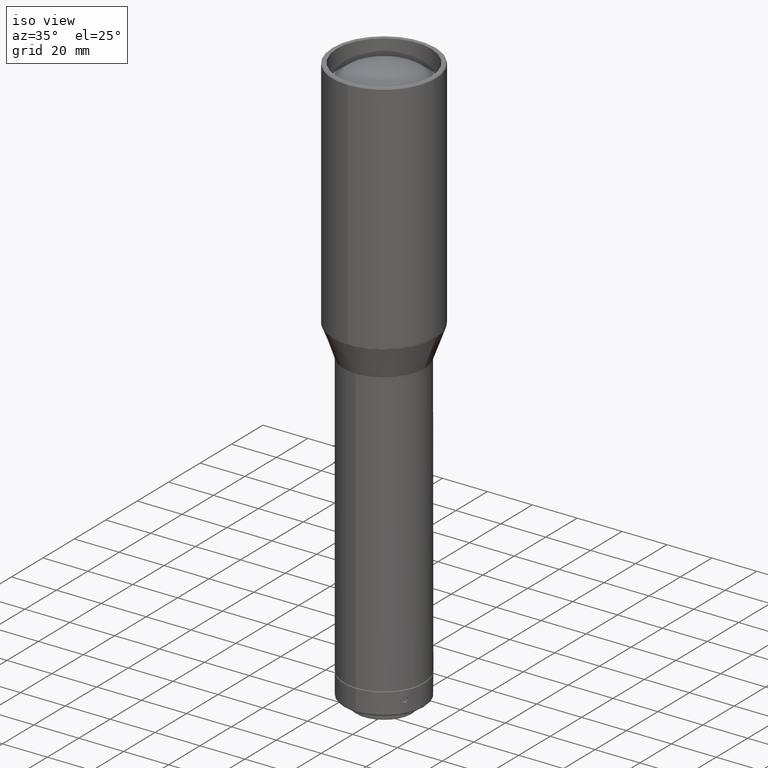
[diagram: clean part render]
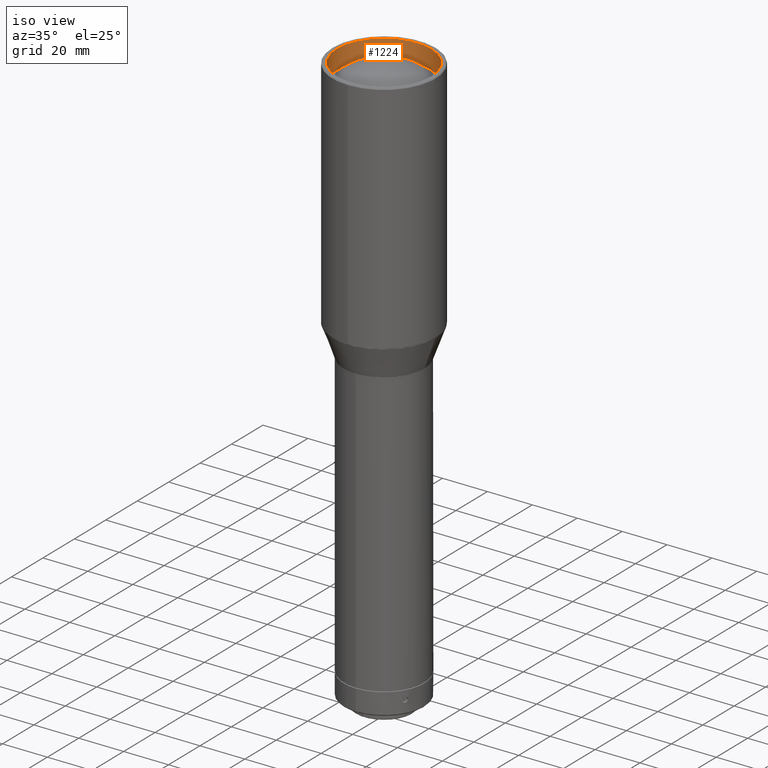
[diagram: same view with one face highlighted and labeled with its STEP entity id]
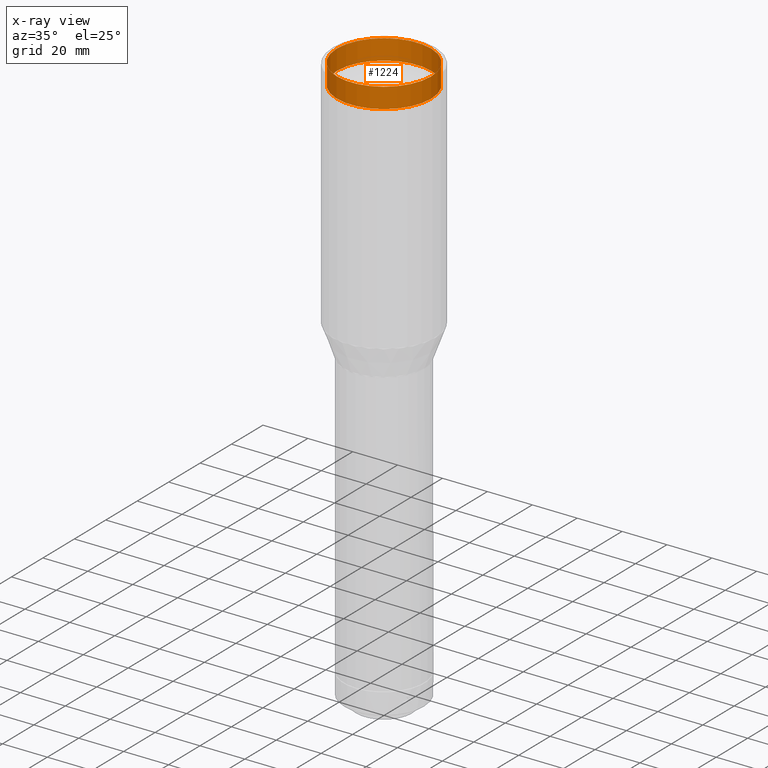
[diagram: x-ray of the same camera — body ghosted, the highlighted face saturated]
A machine part, iso view. The second image highlights one B-rep face of the part: STEP entity #1224.
The next image is the same camera in x-ray: the body ghosted, the highlighted face saturated — about 0% of this face is hidden behind the body in this view.
In plain terms, the highlighted cylindrical surface (bore or boss wall) has radius 21 mm, axis along (-0, -0, 1).
Its self-contained STEP definition (entity closure, byte-faithful):
#131 = CARTESIAN_POINT ( 'NONE',  ( 0.000000000000000000, 0.000000000000000000, -394.0000000000000000 ) ) ;
#199 = CIRCLE ( 'NONE', #369, 21.00000000000000000 ) ;
#205 = ORIENTED_EDGE ( 'NONE', *, *, #1074, .F. ) ;
#256 = CARTESIAN_POINT ( 'NONE',  ( 21.00000000000000000, 0.000000000000000000, -403.0000000000000000 ) ) ;
#257 = DIRECTION ( 'NONE',  ( 0.000000000000000000, 0.000000000000000000, 1.000000000000000000 ) ) ;
#263 = VERTEX_POINT ( 'NONE', #1209 ) ;
#352 = VERTEX_POINT ( 'NONE', #256 ) ;
#369 = AXIS2_PLACEMENT_3D ( 'NONE', #131, #1057, #741 ) ;
#430 = ORIENTED_EDGE ( 'NONE', *, *, #574, .T. ) ;
#431 = CIRCLE ( 'NONE', #1139, 21.00000000000000000 ) ;
#489 = CYLINDRICAL_SURFACE ( 'NONE', #802, 21.00000000000000000 ) ;
#574 = EDGE_CURVE ( 'NONE', #263, #263, #199, .T. ) ;
#576 = DIRECTION ( 'NONE',  ( -0.000000000000000000, -0.000000000000000000, 1.000000000000000000 ) ) ;
#583 = DIRECTION ( 'NONE',  ( 1.000000000000000000, 0.000000000000000000, 0.000000000000000000 ) ) ;
#671 = FACE_OUTER_BOUND ( 'NONE', #1002, .T. ) ;
#741 = DIRECTION ( 'NONE',  ( 1.000000000000000000, 0.000000000000000000, 0.000000000000000000 ) ) ;
#802 = AXIS2_PLACEMENT_3D ( 'NONE', #1098, #576, #583 ) ;
#957 = CARTESIAN_POINT ( 'NONE',  ( 0.000000000000000000, 0.000000000000000000, -403.0000000000000000 ) ) ;
#988 = FACE_OUTER_BOUND ( 'NONE', #1252, .T. ) ;
#1002 = EDGE_LOOP ( 'NONE', ( #430 ) ) ;
#1057 = DIRECTION ( 'NONE',  ( 0.000000000000000000, 0.000000000000000000, 1.000000000000000000 ) ) ;
#1066 = DIRECTION ( 'NONE',  ( 1.000000000000000000, 0.000000000000000000, 0.000000000000000000 ) ) ;
#1074 = EDGE_CURVE ( 'NONE', #352, #352, #431, .T. ) ;
#1098 = CARTESIAN_POINT ( 'NONE',  ( 0.000000000000000000, 0.000000000000000000, -403.0000000000000000 ) ) ;
#1139 = AXIS2_PLACEMENT_3D ( 'NONE', #957, #257, #1066 ) ;
#1209 = CARTESIAN_POINT ( 'NONE',  ( 21.00000000000000000, 0.000000000000000000, -394.0000000000000000 ) ) ;
#1224 = ADVANCED_FACE ( 'NONE', ( #988, #671 ), #489, .F. ) ;
#1252 = EDGE_LOOP ( 'NONE', ( #205 ) ) ;